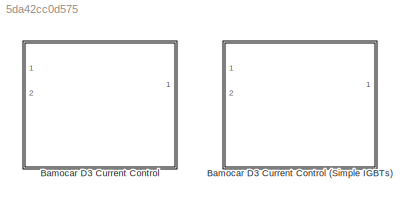
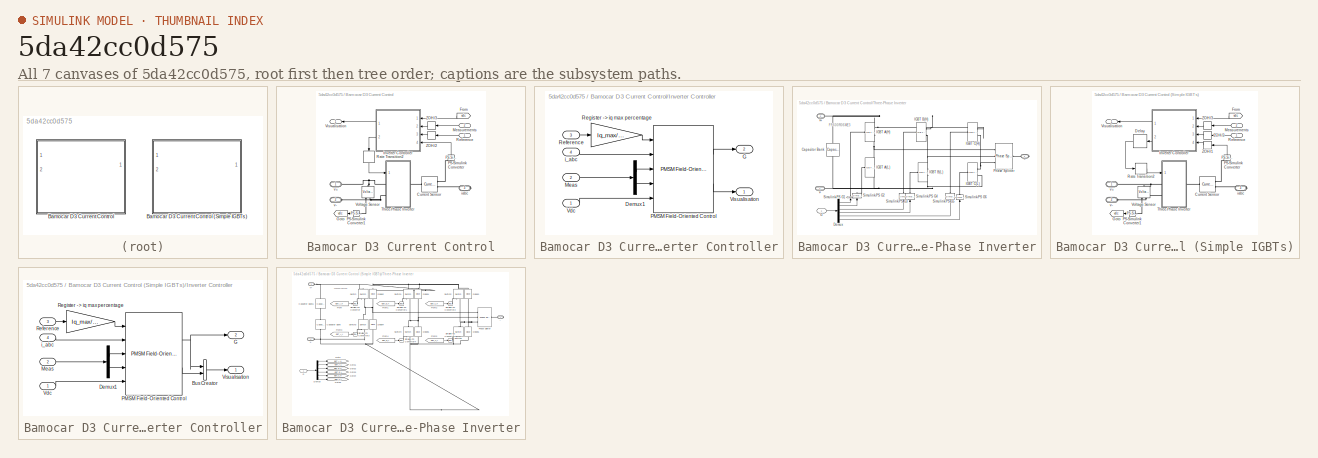
[diagram: thumbnail index - all 7 canvases of the model, root first then tree order]
MODEL slx_5da42cc0d575
KIND library
CONFIG AbsTol = auto
CONFIG EnableMultiTasking = off
CONFIG FixedStep = auto
CONFIG MaxStep = auto
CONFIG MinStep = auto
CONFIG RelTol = 1e-3
CONFIG SampleTimeConstraint = Unconstrained
CONFIG Solver = VariableStepAuto
CONFIG SolverName = VariableStepAuto
CONFIG StartTime = 0.0
CONFIG StopTime = 10.0
BLOCK [SubSystem] Bamocar D3 Current Control
  Ports = [2, 1, 0, 0, 0, 2, 1]
  RequestExecContextInheritance = off
BLOCK [SubSystem] Bamocar D3 Current Control (Simple IGBTs)
  Ports = [2, 1, 0, 0, 0, 2, 1]
  RequestExecContextInheritance = off
BLOCK [Reference] Bamocar D3 Current Control (Simple IGBTs)/Current Sensor  REF=ee_lib/Sensors &
Transducers/Current Sensor
(Three-Phase)
  Ports = [0, 0, 0, 0, 0, 1, 2]
  SourceBlock = ee_lib/Sensors &\nTransducers/Current Sensor\n(Three-Phase)
  SourceProductBaseCode = PS
  SourceProductName = Simscape Electrical
  SourceType = Current Sensor\n(Three-Phase)
BLOCK [Delay] Bamocar D3 Current Control (Simple IGBTs)/Delay
  DelayLength = 1
  InputPortMap = u0
  Ports = [1, 1]
BLOCK [From] Bamocar D3 Current Control (Simple IGBTs)/From
  GotoTag = vdc
BLOCK [Goto] Bamocar D3 Current Control (Simple IGBTs)/Goto
  GotoTag = vdc
BLOCK [SubSystem] Bamocar D3 Current Control (Simple IGBTs)/Inverter Controller
  Ports = [4, 2]
  RequestExecContextInheritance = off
BLOCK [BusCreator] Bamocar D3 Current Control (Simple IGBTs)/Inverter Controller/Bus Creator
  DisplayOption = bar
  InheritFromInputs = on
  Inputs = 2
  Ports = [2, 1]
BLOCK [Demux] Bamocar D3 Current Control (Simple IGBTs)/Inverter Controller/Demux1
  DisplayOption = bar
  Outputs = 2
  Ports = [1, 2]
BLOCK [Outport] Bamocar D3 Current Control (Simple IGBTs)/Inverter Controller/G
  IconDisplay = Port number
  Port = 2
BLOCK [Inport] Bamocar D3 Current Control (Simple IGBTs)/Inverter Controller/Meas
  IconDisplay = Port number
  Port = 2
BLOCK [Reference] Bamocar D3 Current Control (Simple IGBTs)/Inverter Controller/PMSM Field-Oriented Control  REF=eePmsmFieldOrientedControl/PMSM Field-Oriented
Control
  Ports = [5, 2]
  SourceBlock = eePmsmFieldOrientedControl/PMSM Field-Oriented\nControl
  SourceProductBaseCode = PS
  SourceProductName = Simscape Electrical
  SourceType = PMSM Field-Oriented Control
BLOCK [Inport] Bamocar D3 Current Control (Simple IGBTs)/Inverter Controller/Reference
  IconDisplay = Port number
  Port = 3
BLOCK [Gain] Bamocar D3 Current Control (Simple IGBTs)/Inverter Controller/Register -> iq max percentage
  Commented = through
  Gain = Iq_max/32787
  OutDataTypeStr = Inherit: Inherit via internal rule
  ParamDataTypeStr = Inherit: Inherit via internal rule
  SaturateOnIntegerOverflow = off
BLOCK [Inport] Bamocar D3 Current Control (Simple IGBTs)/Inverter Controller/Vdc
  IconDisplay = Port number
BLOCK [Outport] Bamocar D3 Current Control (Simple IGBTs)/Inverter Controller/Visualisation
  IconDisplay = Port number
BLOCK [Inport] Bamocar D3 Current Control (Simple IGBTs)/Inverter Controller/i_abc
  IconDisplay = Port number
  Port = 4
BLOCK [Inport] Bamocar D3 Current Control (Simple IGBTs)/Measurements
  IconDisplay = Port number
  Port = 2
BLOCK [Reference] Bamocar D3 Current Control (Simple IGBTs)/PS-Simulink Converter  REF=nesl_utility/PS-Simulink
Converter
  Ports = [0, 1, 0, 0, 0, 1]
  SourceBlock = nesl_utility/PS-Simulink\nConverter
  SourceProductBaseCode = SS
  SourceProductName = Simscape
  SourceType = PS-Simulink\nConverter
BLOCK [Reference] Bamocar D3 Current Control (Simple IGBTs)/PS-Simulink Converter1  REF=nesl_utility/PS-Simulink
Converter
  Ports = [0, 1, 0, 0, 0, 1]
  SourceBlock = nesl_utility/PS-Simulink\nConverter
  SourceProductBaseCode = SS
  SourceProductName = Simscape
  SourceType = PS-Simulink\nConverter
BLOCK [RateTransition] Bamocar D3 Current Control (Simple IGBTs)/Rate Transition2
  OutPortSampleTime = Ts
BLOCK [Inport] Bamocar D3 Current Control (Simple IGBTs)/Reference
  IconDisplay = Port number
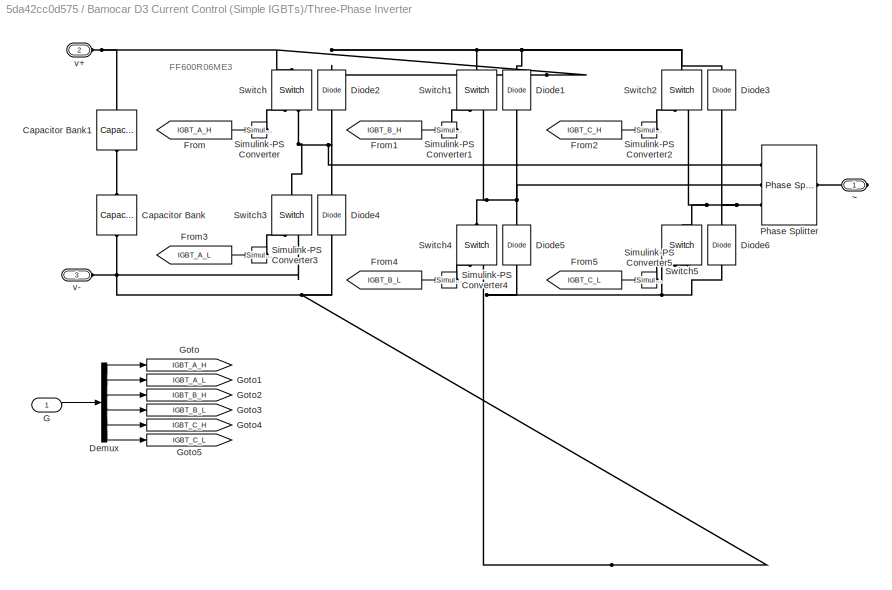
BLOCK [SubSystem] Bamocar D3 Current Control (Simple IGBTs)/Three-Phase Inverter
  Ports = [1, 0, 0, 0, 0, 2, 1]
  RequestExecContextInheritance = off
BLOCK [Reference] Bamocar D3 Current Control (Simple IGBTs)/Three-Phase Inverter/Capacitor Bank  REF=fl_lib/Electrical/Electrical Elements/Capacitor
  Ports = [0, 0, 0, 0, 0, 1, 1]
  SourceBlock = fl_lib/Electrical/Electrical Elements/Capacitor
  SourceProductBaseCode = SS
  SourceProductName = Simscape
  SourceType = Capacitor
BLOCK [Reference] Bamocar D3 Current Control (Simple IGBTs)/Three-Phase Inverter/Capacitor Bank1  REF=fl_lib/Electrical/Electrical Elements/Capacitor
  Ports = [0, 0, 0, 0, 0, 1, 1]
  SourceBlock = fl_lib/Electrical/Electrical Elements/Capacitor
  SourceProductBaseCode = SS
  SourceProductName = Simscape
  SourceType = Capacitor
BLOCK [Demux] Bamocar D3 Current Control (Simple IGBTs)/Three-Phase Inverter/Demux
  DisplayOption = bar
  Outputs = 6
  Ports = [1, 6]
BLOCK [Reference] Bamocar D3 Current Control (Simple IGBTs)/Three-Phase Inverter/Diode1  REF=fl_lib/Electrical/Electrical Elements/Diode
  Ports = [0, 0, 0, 0, 0, 1, 1]
  SourceBlock = fl_lib/Electrical/Electrical Elements/Diode
  SourceProductBaseCode = SS
  SourceProductName = Simscape
  SourceType = Diode
BLOCK [Reference] Bamocar D3 Current Control (Simple IGBTs)/Three-Phase Inverter/Diode2  REF=fl_lib/Electrical/Electrical Elements/Diode
  Ports = [0, 0, 0, 0, 0, 1, 1]
  SourceBlock = fl_lib/Electrical/Electrical Elements/Diode
  SourceProductBaseCode = SS
  SourceProductName = Simscape
  SourceType = Diode
BLOCK [Reference] Bamocar D3 Current Control (Simple IGBTs)/Three-Phase Inverter/Diode3  REF=fl_lib/Electrical/Electrical Elements/Diode
  Ports = [0, 0, 0, 0, 0, 1, 1]
  SourceBlock = fl_lib/Electrical/Electrical Elements/Diode
  SourceProductBaseCode = SS
  SourceProductName = Simscape
  SourceType = Diode
BLOCK [Reference] Bamocar D3 Current Control (Simple IGBTs)/Three-Phase Inverter/Diode4  REF=fl_lib/Electrical/Electrical Elements/Diode
  Ports = [0, 0, 0, 0, 0, 1, 1]
  SourceBlock = fl_lib/Electrical/Electrical Elements/Diode
  SourceProductBaseCode = SS
  SourceProductName = Simscape
  SourceType = Diode
BLOCK [Reference] Bamocar D3 Current Control (Simple IGBTs)/Three-Phase Inverter/Diode5  REF=fl_lib/Electrical/Electrical Elements/Diode
  Ports = [0, 0, 0, 0, 0, 1, 1]
  SourceBlock = fl_lib/Electrical/Electrical Elements/Diode
  SourceProductBaseCode = SS
  SourceProductName = Simscape
  SourceType = Diode
BLOCK [Reference] Bamocar D3 Current Control (Simple IGBTs)/Three-Phase Inverter/Diode6  REF=fl_lib/Electrical/Electrical Elements/Diode
  Ports = [0, 0, 0, 0, 0, 1, 1]
  SourceBlock = fl_lib/Electrical/Electrical Elements/Diode
  SourceProductBaseCode = SS
  SourceProductName = Simscape
  SourceType = Diode
BLOCK [From] Bamocar D3 Current Control (Simple IGBTs)/Three-Phase Inverter/From
  GotoTag = IGBT_A_H
BLOCK [From] Bamocar D3 Current Control (Simple IGBTs)/Three-Phase Inverter/From1
  GotoTag = IGBT_B_H
BLOCK [From] Bamocar D3 Current Control (Simple IGBTs)/Three-Phase Inverter/From2
  GotoTag = IGBT_C_H
BLOCK [From] Bamocar D3 Current Control (Simple IGBTs)/Three-Phase Inverter/From3
  GotoTag = IGBT_A_L
BLOCK [From] Bamocar D3 Current Control (Simple IGBTs)/Three-Phase Inverter/From4
  GotoTag = IGBT_B_L
BLOCK [From] Bamocar D3 Current Control (Simple IGBTs)/Three-Phase Inverter/From5
  GotoTag = IGBT_C_L
BLOCK [Inport] Bamocar D3 Current Control (Simple IGBTs)/Three-Phase Inverter/G
  IconDisplay = Port number
BLOCK [Goto] Bamocar D3 Current Control (Simple IGBTs)/Three-Phase Inverter/Goto
  GotoTag = IGBT_A_H
BLOCK [Goto] Bamocar D3 Current Control (Simple IGBTs)/Three-Phase Inverter/Goto1
  GotoTag = IGBT_A_L
BLOCK [Goto] Bamocar D3 Current Control (Simple IGBTs)/Three-Phase Inverter/Goto2
  GotoTag = IGBT_B_H
BLOCK [Goto] Bamocar D3 Current Control (Simple IGBTs)/Three-Phase Inverter/Goto3
  GotoTag = IGBT_B_L
BLOCK [Goto] Bamocar D3 Current Control (Simple IGBTs)/Three-Phase Inverter/Goto4
  GotoTag = IGBT_C_H
BLOCK [Goto] Bamocar D3 Current Control (Simple IGBTs)/Three-Phase Inverter/Goto5
  GotoTag = IGBT_C_L
BLOCK [Reference] Bamocar D3 Current Control (Simple IGBTs)/Three-Phase Inverter/Phase Splitter  REF=ee_lib/Connectors &
References/Phase Splitter
  Ports = [0, 0, 0, 0, 0, 1, 3]
  SourceBlock = ee_lib/Connectors &\nReferences/Phase Splitter
  SourceProductBaseCode = PS
  SourceProductName = Simscape Electrical
  SourceType = Phase Splitter
BLOCK [Reference] Bamocar D3 Current Control (Simple IGBTs)/Three-Phase Inverter/Simulink-PS Converter  REF=nesl_utility/Simulink-PS
Converter
  Ports = [1, 0, 0, 0, 0, 0, 1]
  SourceBlock = nesl_utility/Simulink-PS\nConverter
  SourceProductBaseCode = SS
  SourceProductName = Simscape
  SourceType = Simulink-PS\nConverter
BLOCK [Reference] Bamocar D3 Current Control (Simple IGBTs)/Three-Phase Inverter/Simulink-PS Converter1  REF=nesl_utility/Simulink-PS
Converter
  Ports = [1, 0, 0, 0, 0, 0, 1]
  SourceBlock = nesl_utility/Simulink-PS\nConverter
  SourceProductBaseCode = SS
  SourceProductName = Simscape
  SourceType = Simulink-PS\nConverter
BLOCK [Reference] Bamocar D3 Current Control (Simple IGBTs)/Three-Phase Inverter/Simulink-PS Converter2  REF=nesl_utility/Simulink-PS
Converter
  Ports = [1, 0, 0, 0, 0, 0, 1]
  SourceBlock = nesl_utility/Simulink-PS\nConverter
  SourceProductBaseCode = SS
  SourceProductName = Simscape
  SourceType = Simulink-PS\nConverter
BLOCK [Reference] Bamocar D3 Current Control (Simple IGBTs)/Three-Phase Inverter/Simulink-PS Converter3  REF=nesl_utility/Simulink-PS
Converter
  Ports = [1, 0, 0, 0, 0, 0, 1]
  SourceBlock = nesl_utility/Simulink-PS\nConverter
  SourceProductBaseCode = SS
  SourceProductName = Simscape
  SourceType = Simulink-PS\nConverter
BLOCK [Reference] Bamocar D3 Current Control (Simple IGBTs)/Three-Phase Inverter/Simulink-PS Converter4  REF=nesl_utility/Simulink-PS
Converter
  Ports = [1, 0, 0, 0, 0, 0, 1]
  SourceBlock = nesl_utility/Simulink-PS\nConverter
  SourceProductBaseCode = SS
  SourceProductName = Simscape
  SourceType = Simulink-PS\nConverter
BLOCK [Reference] Bamocar D3 Current Control (Simple IGBTs)/Three-Phase Inverter/Simulink-PS Converter5  REF=nesl_utility/Simulink-PS
Converter
  Ports = [1, 0, 0, 0, 0, 0, 1]
  SourceBlock = nesl_utility/Simulink-PS\nConverter
  SourceProductBaseCode = SS
  SourceProductName = Simscape
  SourceType = Simulink-PS\nConverter
BLOCK [Reference] Bamocar D3 Current Control (Simple IGBTs)/Three-Phase Inverter/Switch  REF=fl_lib/Electrical/Electrical Elements/Switch
  Ports = [0, 0, 0, 0, 0, 1, 2]
  SourceBlock = fl_lib/Electrical/Electrical Elements/Switch
  SourceProductBaseCode = SS
  SourceProductName = Simscape
  SourceType = Switch
BLOCK [Reference] Bamocar D3 Current Control (Simple IGBTs)/Three-Phase Inverter/Switch1  REF=fl_lib/Electrical/Electrical Elements/Switch
  Ports = [0, 0, 0, 0, 0, 1, 2]
  SourceBlock = fl_lib/Electrical/Electrical Elements/Switch
  SourceProductBaseCode = SS
  SourceProductName = Simscape
  SourceType = Switch
BLOCK [Reference] Bamocar D3 Current Control (Simple IGBTs)/Three-Phase Inverter/Switch2  REF=fl_lib/Electrical/Electrical Elements/Switch
  Ports = [0, 0, 0, 0, 0, 1, 2]
  SourceBlock = fl_lib/Electrical/Electrical Elements/Switch
  SourceProductBaseCode = SS
  SourceProductName = Simscape
  SourceType = Switch
BLOCK [Reference] Bamocar D3 Current Control (Simple IGBTs)/Three-Phase Inverter/Switch3  REF=fl_lib/Electrical/Electrical Elements/Switch
  Ports = [0, 0, 0, 0, 0, 1, 2]
  SourceBlock = fl_lib/Electrical/Electrical Elements/Switch
  SourceProductBaseCode = SS
  SourceProductName = Simscape
  SourceType = Switch
BLOCK [Reference] Bamocar D3 Current Control (Simple IGBTs)/Three-Phase Inverter/Switch4  REF=fl_lib/Electrical/Electrical Elements/Switch
  Ports = [0, 0, 0, 0, 0, 1, 2]
  SourceBlock = fl_lib/Electrical/Electrical Elements/Switch
  SourceProductBaseCode = SS
  SourceProductName = Simscape
  SourceType = Switch
BLOCK [Reference] Bamocar D3 Current Control (Simple IGBTs)/Three-Phase Inverter/Switch5  REF=fl_lib/Electrical/Electrical Elements/Switch
  Ports = [0, 0, 0, 0, 0, 1, 2]
  SourceBlock = fl_lib/Electrical/Electrical Elements/Switch
  SourceProductBaseCode = SS
  SourceProductName = Simscape
  SourceType = Switch
BLOCK [PMIOPort] Bamocar D3 Current Control (Simple IGBTs)/Three-Phase Inverter/v+
  Port = 2
  Side = Left
  Tag = PMCPort
BLOCK [PMIOPort] Bamocar D3 Current Control (Simple IGBTs)/Three-Phase Inverter/v-
  Port = 3
  Side = Left
  Tag = PMCPort
BLOCK [PMIOPort] Bamocar D3 Current Control (Simple IGBTs)/Three-Phase Inverter/~
  Side = Right
  Tag = PMCPort
BLOCK [Outport] Bamocar D3 Current Control (Simple IGBTs)/Visualisation
  IconDisplay = Port number
BLOCK [Reference] Bamocar D3 Current Control (Simple IGBTs)/Voltage Sensor  REF=fl_lib/Electrical/Electrical Sensors/Voltage Sensor
  Ports = [0, 0, 0, 0, 0, 1, 2]
  SourceBlock = fl_lib/Electrical/Electrical Sensors/Voltage Sensor
  SourceProductBaseCode = SS
  SourceProductName = Simscape
  SourceType = Voltage Sensor
BLOCK [ZeroOrderHold] Bamocar D3 Current Control (Simple IGBTs)/ZOH//1
  SampleTime = Tsc
BLOCK [ZeroOrderHold] Bamocar D3 Current Control (Simple IGBTs)/ZOH//2
  SampleTime = Tsc
BLOCK [ZeroOrderHold] Bamocar D3 Current Control (Simple IGBTs)/ZOH//3
  SampleTime = Tsc
BLOCK [PMIOPort] Bamocar D3 Current Control (Simple IGBTs)/iabc
  Port = 3
  Side = Right
BLOCK [PMIOPort] Bamocar D3 Current Control (Simple IGBTs)/v+
  Side = Left
BLOCK [PMIOPort] Bamocar D3 Current Control (Simple IGBTs)/v-
  Port = 2
  Side = Left
BLOCK [Reference] Bamocar D3 Current Control/Current Sensor  REF=ee_lib/Sensors &
Transducers/Current Sensor
(Three-Phase)
  Ports = [0, 0, 0, 0, 0, 1, 2]
  SourceBlock = ee_lib/Sensors &\nTransducers/Current Sensor\n(Three-Phase)
  SourceProductBaseCode = PS
  SourceProductName = Simscape Electrical
  SourceType = Current Sensor\n(Three-Phase)
BLOCK [From] Bamocar D3 Current Control/From
  GotoTag = vdc
BLOCK [Goto] Bamocar D3 Current Control/Goto
  GotoTag = vdc
BLOCK [SubSystem] Bamocar D3 Current Control/Inverter Controller
  Ports = [4, 2]
  RequestExecContextInheritance = off
BLOCK [Demux] Bamocar D3 Current Control/Inverter Controller/Demux1
  DisplayOption = bar
  Outputs = 2
  Ports = [1, 2]
BLOCK [Outport] Bamocar D3 Current Control/Inverter Controller/G
  IconDisplay = Port number
  Port = 2
BLOCK [Inport] Bamocar D3 Current Control/Inverter Controller/Meas
  IconDisplay = Port number
  Port = 2
BLOCK [Reference] Bamocar D3 Current Control/Inverter Controller/PMSM Field-Oriented Control  REF=eePmsmFieldOrientedControl/PMSM Field-Oriented
Control
  Ports = [5, 2]
  SourceBlock = eePmsmFieldOrientedControl/PMSM Field-Oriented\nControl
  SourceProductBaseCode = PS
  SourceProductName = Simscape Electrical
  SourceType = PMSM Field-Oriented Control
BLOCK [Inport] Bamocar D3 Current Control/Inverter Controller/Reference
  IconDisplay = Port number
  Port = 3
BLOCK [Gain] Bamocar D3 Current Control/Inverter Controller/Register -> iq max percentage
  Gain = Iq_max/32787
  OutDataTypeStr = Inherit: Inherit via internal rule
  ParamDataTypeStr = Inherit: Inherit via internal rule
  SaturateOnIntegerOverflow = off
BLOCK [Inport] Bamocar D3 Current Control/Inverter Controller/Vdc
  IconDisplay = Port number
BLOCK [Outport] Bamocar D3 Current Control/Inverter Controller/Visualisation
  IconDisplay = Port number
BLOCK [Inport] Bamocar D3 Current Control/Inverter Controller/i_abc
  IconDisplay = Port number
  Port = 4
BLOCK [Inport] Bamocar D3 Current Control/Measurements
  IconDisplay = Port number
  Port = 2
BLOCK [Reference] Bamocar D3 Current Control/PS-Simulink Converter  REF=nesl_utility/PS-Simulink
Converter
  Ports = [0, 1, 0, 0, 0, 1]
  SourceBlock = nesl_utility/PS-Simulink\nConverter
  SourceProductBaseCode = SS
  SourceProductName = Simscape
  SourceType = PS-Simulink\nConverter
BLOCK [Reference] Bamocar D3 Current Control/PS-Simulink Converter1  REF=nesl_utility/PS-Simulink
Converter
  Ports = [0, 1, 0, 0, 0, 1]
  SourceBlock = nesl_utility/PS-Simulink\nConverter
  SourceProductBaseCode = SS
  SourceProductName = Simscape
  SourceType = PS-Simulink\nConverter
BLOCK [RateTransition] Bamocar D3 Current Control/Rate Transition2
  OutPortSampleTime = Ts
BLOCK [Inport] Bamocar D3 Current Control/Reference
  IconDisplay = Port number
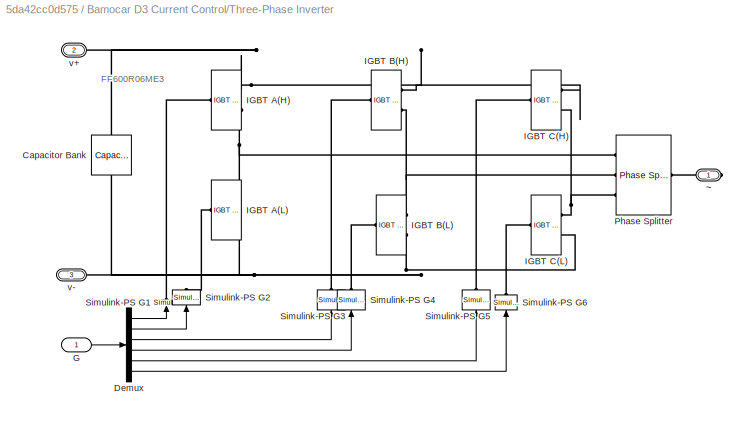
BLOCK [SubSystem] Bamocar D3 Current Control/Three-Phase Inverter
  Ports = [1, 0, 0, 0, 0, 2, 1]
  RequestExecContextInheritance = off
BLOCK [Reference] Bamocar D3 Current Control/Three-Phase Inverter/Capacitor Bank  REF=fl_lib/Electrical/Electrical Elements/Capacitor
  Ports = [0, 0, 0, 0, 0, 1, 1]
  SourceBlock = fl_lib/Electrical/Electrical Elements/Capacitor
  SourceProductBaseCode = SS
  SourceProductName = Simscape
  SourceType = Capacitor
BLOCK [Demux] Bamocar D3 Current Control/Three-Phase Inverter/Demux
  DisplayOption = bar
  Outputs = 6
  Ports = [1, 6]
BLOCK [Inport] Bamocar D3 Current Control/Three-Phase Inverter/G
  IconDisplay = Port number
BLOCK [Reference] Bamocar D3 Current Control/Three-Phase Inverter/IGBT A(H)  REF=ee_lib/Semiconductors &
Converters/IGBT
(Ideal,
Switching)
  Description = Bamocar D3 IGBT Model Number: FF600R06ME3
  Ports = [0, 0, 0, 0, 0, 1, 2]
  SourceBlock = ee_lib/Semiconductors &\nConverters/IGBT\n(Ideal,\nSwitching)
  SourceProductBaseCode = PS
  SourceProductName = Simscape Electrical
  SourceType = IGBT\n(Ideal,\nSwitching)
BLOCK [Reference] Bamocar D3 Current Control/Three-Phase Inverter/IGBT A(L)  REF=ee_lib/Semiconductors &
Converters/IGBT
(Ideal,
Switching)
  Description = Bamocar D3 IGBT Model Number: FF600R06ME3
  Ports = [0, 0, 0, 0, 0, 1, 2]
  SourceBlock = ee_lib/Semiconductors &\nConverters/IGBT\n(Ideal,\nSwitching)
  SourceProductBaseCode = PS
  SourceProductName = Simscape Electrical
  SourceType = IGBT\n(Ideal,\nSwitching)
BLOCK [Reference] Bamocar D3 Current Control/Three-Phase Inverter/IGBT B(H)  REF=ee_lib/Semiconductors &
Converters/IGBT
(Ideal,
Switching)
  Description = Bamocar D3 IGBT Model Number: FF600R06ME3
  Ports = [0, 0, 0, 0, 0, 1, 2]
  SourceBlock = ee_lib/Semiconductors &\nConverters/IGBT\n(Ideal,\nSwitching)
  SourceProductBaseCode = PS
  SourceProductName = Simscape Electrical
  SourceType = IGBT\n(Ideal,\nSwitching)
BLOCK [Reference] Bamocar D3 Current Control/Three-Phase Inverter/IGBT B(L)  REF=ee_lib/Semiconductors &
Converters/IGBT
(Ideal,
Switching)
  Description = Bamocar D3 IGBT Model Number: FF600R06ME3
  Ports = [0, 0, 0, 0, 0, 1, 2]
  SourceBlock = ee_lib/Semiconductors &\nConverters/IGBT\n(Ideal,\nSwitching)
  SourceProductBaseCode = PS
  SourceProductName = Simscape Electrical
  SourceType = IGBT\n(Ideal,\nSwitching)
BLOCK [Reference] Bamocar D3 Current Control/Three-Phase Inverter/IGBT C(H)  REF=ee_lib/Semiconductors &
Converters/IGBT
(Ideal,
Switching)
  Description = Bamocar D3 IGBT Model Number: FF600R06ME3
  Ports = [0, 0, 0, 0, 0, 1, 2]
  SourceBlock = ee_lib/Semiconductors &\nConverters/IGBT\n(Ideal,\nSwitching)
  SourceProductBaseCode = PS
  SourceProductName = Simscape Electrical
  SourceType = IGBT\n(Ideal,\nSwitching)
BLOCK [Reference] Bamocar D3 Current Control/Three-Phase Inverter/IGBT C(L)  REF=ee_lib/Semiconductors &
Converters/IGBT
(Ideal,
Switching)
  Description = Bamocar D3 IGBT Model Number: FF600R06ME3
  Ports = [0, 0, 0, 0, 0, 1, 2]
  SourceBlock = ee_lib/Semiconductors &\nConverters/IGBT\n(Ideal,\nSwitching)
  SourceProductBaseCode = PS
  SourceProductName = Simscape Electrical
  SourceType = IGBT\n(Ideal,\nSwitching)
BLOCK [Reference] Bamocar D3 Current Control/Three-Phase Inverter/Phase Splitter  REF=ee_lib/Connectors &
References/Phase Splitter
  Ports = [0, 0, 0, 0, 0, 1, 3]
  SourceBlock = ee_lib/Connectors &\nReferences/Phase Splitter
  SourceProductBaseCode = PS
  SourceProductName = Simscape Electrical
  SourceType = Phase Splitter
BLOCK [Reference] Bamocar D3 Current Control/Three-Phase Inverter/Simulink-PS G1  REF=nesl_utility/Simulink-PS
Converter
  Ports = [1, 0, 0, 0, 0, 0, 1]
  SourceBlock = nesl_utility/Simulink-PS\nConverter
  SourceProductBaseCode = SS
  SourceProductName = Simscape
  SourceType = Simulink-PS\nConverter
BLOCK [Reference] Bamocar D3 Current Control/Three-Phase Inverter/Simulink-PS G2  REF=nesl_utility/Simulink-PS
Converter
  Ports = [1, 0, 0, 0, 0, 0, 1]
  SourceBlock = nesl_utility/Simulink-PS\nConverter
  SourceProductBaseCode = SS
  SourceProductName = Simscape
  SourceType = Simulink-PS\nConverter
BLOCK [Reference] Bamocar D3 Current Control/Three-Phase Inverter/Simulink-PS G3  REF=nesl_utility/Simulink-PS
Converter
  Ports = [1, 0, 0, 0, 0, 0, 1]
  SourceBlock = nesl_utility/Simulink-PS\nConverter
  SourceProductBaseCode = SS
  SourceProductName = Simscape
  SourceType = Simulink-PS\nConverter
BLOCK [Reference] Bamocar D3 Current Control/Three-Phase Inverter/Simulink-PS G4  REF=nesl_utility/Simulink-PS
Converter
  Ports = [1, 0, 0, 0, 0, 0, 1]
  SourceBlock = nesl_utility/Simulink-PS\nConverter
  SourceProductBaseCode = SS
  SourceProductName = Simscape
  SourceType = Simulink-PS\nConverter
BLOCK [Reference] Bamocar D3 Current Control/Three-Phase Inverter/Simulink-PS G5  REF=nesl_utility/Simulink-PS
Converter
  Ports = [1, 0, 0, 0, 0, 0, 1]
  SourceBlock = nesl_utility/Simulink-PS\nConverter
  SourceProductBaseCode = SS
  SourceProductName = Simscape
  SourceType = Simulink-PS\nConverter
BLOCK [Reference] Bamocar D3 Current Control/Three-Phase Inverter/Simulink-PS G6  REF=nesl_utility/Simulink-PS
Converter
  Ports = [1, 0, 0, 0, 0, 0, 1]
  SourceBlock = nesl_utility/Simulink-PS\nConverter
  SourceProductBaseCode = SS
  SourceProductName = Simscape
  SourceType = Simulink-PS\nConverter
BLOCK [PMIOPort] Bamocar D3 Current Control/Three-Phase Inverter/v+
  Port = 2
  Side = Left
  Tag = PMCPort
BLOCK [PMIOPort] Bamocar D3 Current Control/Three-Phase Inverter/v-
  Port = 3
  Side = Left
  Tag = PMCPort
BLOCK [PMIOPort] Bamocar D3 Current Control/Three-Phase Inverter/~
  Side = Right
  Tag = PMCPort
BLOCK [Outport] Bamocar D3 Current Control/Visualisation
  IconDisplay = Port number
BLOCK [Reference] Bamocar D3 Current Control/Voltage Sensor  REF=fl_lib/Electrical/Electrical Sensors/Voltage Sensor
  Ports = [0, 0, 0, 0, 0, 1, 2]
  SourceBlock = fl_lib/Electrical/Electrical Sensors/Voltage Sensor
  SourceProductBaseCode = SS
  SourceProductName = Simscape
  SourceType = Voltage Sensor
BLOCK [ZeroOrderHold] Bamocar D3 Current Control/ZOH//2
  SampleTime = Tsc
BLOCK [ZeroOrderHold] Bamocar D3 Current Control/ZOH//3
  SampleTime = Tsc
BLOCK [PMIOPort] Bamocar D3 Current Control/iabc
  Port = 3
  Side = Right
BLOCK [PMIOPort] Bamocar D3 Current Control/v+
  Side = Left
BLOCK [PMIOPort] Bamocar D3 Current Control/v-
  Port = 2
  Side = Left
ANNOTATION Bamocar D3 Current Control (Simple IGBTs)/Three-Phase Inverter: FF600R06ME3
ANNOTATION Bamocar D3 Current Control/Three-Phase Inverter: FF600R06ME3
LINE Bamocar D3 Current Control (Simple IGBTs)/Delay:1 -> Bamocar D3 Current Control (Simple IGBTs)/Rate Transition2:1
LINE Bamocar D3 Current Control (Simple IGBTs)/From:1 -> Bamocar D3 Current Control (Simple IGBTs)/Inverter Controller:1
LINE Bamocar D3 Current Control (Simple IGBTs)/Inverter Controller/Bus Creator:1 -> Bamocar D3 Current Control (Simple IGBTs)/Inverter Controller/Visualisation:1
LINE Bamocar D3 Current Control (Simple IGBTs)/Inverter Controller/Demux1:1 -> Bamocar D3 Current Control (Simple IGBTs)/Inverter Controller/PMSM Field-Oriented Control:3
LINE Bamocar D3 Current Control (Simple IGBTs)/Inverter Controller/Demux1:2 -> Bamocar D3 Current Control (Simple IGBTs)/Inverter Controller/PMSM Field-Oriented Control:4
LINE Bamocar D3 Current Control (Simple IGBTs)/Inverter Controller/Meas:1 -> Bamocar D3 Current Control (Simple IGBTs)/Inverter Controller/Demux1:1
NET Bamocar D3 Current Control (Simple IGBTs)/Inverter Controller/PMSM Field-Oriented Control:1 -> Bamocar D3 Current Control (Simple IGBTs)/Inverter Controller/Bus Creator:1, Bamocar D3 Current Control (Simple IGBTs)/Inverter Controller/G:1
LINE Bamocar D3 Current Control (Simple IGBTs)/Inverter Controller/PMSM Field-Oriented Control:2 -> Bamocar D3 Current Control (Simple IGBTs)/Inverter Controller/Bus Creator:2
LINE Bamocar D3 Current Control (Simple IGBTs)/Inverter Controller/Reference:1 -> Bamocar D3 Current Control (Simple IGBTs)/Inverter Controller/Register -> iq max percentage:1
LINE Bamocar D3 Current Control (Simple IGBTs)/Inverter Controller/Register -> iq max percentage:1 -> Bamocar D3 Current Control (Simple IGBTs)/Inverter Controller/PMSM Field-Oriented Control:1
LINE Bamocar D3 Current Control (Simple IGBTs)/Inverter Controller/Vdc:1 -> Bamocar D3 Current Control (Simple IGBTs)/Inverter Controller/PMSM Field-Oriented Control:5
LINE Bamocar D3 Current Control (Simple IGBTs)/Inverter Controller/i_abc:1 -> Bamocar D3 Current Control (Simple IGBTs)/Inverter Controller/PMSM Field-Oriented Control:2
LINE Bamocar D3 Current Control (Simple IGBTs)/Inverter Controller:1 -> Bamocar D3 Current Control (Simple IGBTs)/Visualisation:1
LINE Bamocar D3 Current Control (Simple IGBTs)/Inverter Controller:2 -> Bamocar D3 Current Control (Simple IGBTs)/Delay:1
LINE Bamocar D3 Current Control (Simple IGBTs)/Measurements:1 -> Bamocar D3 Current Control (Simple IGBTs)/ZOH//3:1
LINE Bamocar D3 Current Control (Simple IGBTs)/PS-Simulink Converter1:1 -> Bamocar D3 Current Control (Simple IGBTs)/Goto:1
LINE Bamocar D3 Current Control (Simple IGBTs)/PS-Simulink Converter:1 -> Bamocar D3 Current Control (Simple IGBTs)/ZOH//1:1
LINE Bamocar D3 Current Control (Simple IGBTs)/Rate Transition2:1 -> Bamocar D3 Current Control (Simple IGBTs)/Three-Phase Inverter:1
LINE Bamocar D3 Current Control (Simple IGBTs)/Reference:1 -> Bamocar D3 Current Control (Simple IGBTs)/ZOH//2:1
LINE Bamocar D3 Current Control (Simple IGBTs)/Three-Phase Inverter/Demux:1 -> Bamocar D3 Current Control (Simple IGBTs)/Three-Phase Inverter/Goto:1
LINE Bamocar D3 Current Control (Simple IGBTs)/Three-Phase Inverter/Demux:2 -> Bamocar D3 Current Control (Simple IGBTs)/Three-Phase Inverter/Goto1:1
LINE Bamocar D3 Current Control (Simple IGBTs)/Three-Phase Inverter/Demux:3 -> Bamocar D3 Current Control (Simple IGBTs)/Three-Phase Inverter/Goto2:1
LINE Bamocar D3 Current Control (Simple IGBTs)/Three-Phase Inverter/Demux:4 -> Bamocar D3 Current Control (Simple IGBTs)/Three-Phase Inverter/Goto3:1
LINE Bamocar D3 Current Control (Simple IGBTs)/Three-Phase Inverter/Demux:5 -> Bamocar D3 Current Control (Simple IGBTs)/Three-Phase Inverter/Goto4:1
LINE Bamocar D3 Current Control (Simple IGBTs)/Three-Phase Inverter/Demux:6 -> Bamocar D3 Current Control (Simple IGBTs)/Three-Phase Inverter/Goto5:1
LINE Bamocar D3 Current Control (Simple IGBTs)/Three-Phase Inverter/From1:1 -> Bamocar D3 Current Control (Simple IGBTs)/Three-Phase Inverter/Simulink-PS Converter1:1
LINE Bamocar D3 Current Control (Simple IGBTs)/Three-Phase Inverter/From2:1 -> Bamocar D3 Current Control (Simple IGBTs)/Three-Phase Inverter/Simulink-PS Converter2:1
LINE Bamocar D3 Current Control (Simple IGBTs)/Three-Phase Inverter/From3:1 -> Bamocar D3 Current Control (Simple IGBTs)/Three-Phase Inverter/Simulink-PS Converter3:1
LINE Bamocar D3 Current Control (Simple IGBTs)/Three-Phase Inverter/From4:1 -> Bamocar D3 Current Control (Simple IGBTs)/Three-Phase Inverter/Simulink-PS Converter4:1
LINE Bamocar D3 Current Control (Simple IGBTs)/Three-Phase Inverter/From5:1 -> Bamocar D3 Current Control (Simple IGBTs)/Three-Phase Inverter/Simulink-PS Converter5:1
LINE Bamocar D3 Current Control (Simple IGBTs)/Three-Phase Inverter/From:1 -> Bamocar D3 Current Control (Simple IGBTs)/Three-Phase Inverter/Simulink-PS Converter:1
LINE Bamocar D3 Current Control (Simple IGBTs)/Three-Phase Inverter/G:1 -> Bamocar D3 Current Control (Simple IGBTs)/Three-Phase Inverter/Demux:1
LINE Bamocar D3 Current Control (Simple IGBTs)/ZOH//1:1 -> Bamocar D3 Current Control (Simple IGBTs)/Inverter Controller:4
LINE Bamocar D3 Current Control (Simple IGBTs)/ZOH//2:1 -> Bamocar D3 Current Control (Simple IGBTs)/Inverter Controller:3
LINE Bamocar D3 Current Control (Simple IGBTs)/ZOH//3:1 -> Bamocar D3 Current Control (Simple IGBTs)/Inverter Controller:2
LINE Bamocar D3 Current Control/From:1 -> Bamocar D3 Current Control/Inverter Controller:1
LINE Bamocar D3 Current Control/Inverter Controller/Demux1:1 -> Bamocar D3 Current Control/Inverter Controller/PMSM Field-Oriented Control:3
LINE Bamocar D3 Current Control/Inverter Controller/Demux1:2 -> Bamocar D3 Current Control/Inverter Controller/PMSM Field-Oriented Control:4
LINE Bamocar D3 Current Control/Inverter Controller/Meas:1 -> Bamocar D3 Current Control/Inverter Controller/Demux1:1
LINE Bamocar D3 Current Control/Inverter Controller/PMSM Field-Oriented Control:1 -> Bamocar D3 Current Control/Inverter Controller/G:1
LINE Bamocar D3 Current Control/Inverter Controller/PMSM Field-Oriented Control:2 -> Bamocar D3 Current Control/Inverter Controller/Visualisation:1
LINE Bamocar D3 Current Control/Inverter Controller/Reference:1 -> Bamocar D3 Current Control/Inverter Controller/Register -> iq max percentage:1
LINE Bamocar D3 Current Control/Inverter Controller/Register -> iq max percentage:1 -> Bamocar D3 Current Control/Inverter Controller/PMSM Field-Oriented Control:1
LINE Bamocar D3 Current Control/Inverter Controller/Vdc:1 -> Bamocar D3 Current Control/Inverter Controller/PMSM Field-Oriented Control:5
LINE Bamocar D3 Current Control/Inverter Controller/i_abc:1 -> Bamocar D3 Current Control/Inverter Controller/PMSM Field-Oriented Control:2
LINE Bamocar D3 Current Control/Inverter Controller:1 -> Bamocar D3 Current Control/Visualisation:1
LINE Bamocar D3 Current Control/Inverter Controller:2 -> Bamocar D3 Current Control/Rate Transition2:1
LINE Bamocar D3 Current Control/Measurements:1 -> Bamocar D3 Current Control/ZOH//3:1
LINE Bamocar D3 Current Control/PS-Simulink Converter1:1 -> Bamocar D3 Current Control/Goto:1
LINE Bamocar D3 Current Control/PS-Simulink Converter:1 -> Bamocar D3 Current Control/Inverter Controller:4
LINE Bamocar D3 Current Control/Rate Transition2:1 -> Bamocar D3 Current Control/Three-Phase Inverter:1
LINE Bamocar D3 Current Control/Reference:1 -> Bamocar D3 Current Control/ZOH//2:1
LINE Bamocar D3 Current Control/Three-Phase Inverter/Demux:1 -> Bamocar D3 Current Control/Three-Phase Inverter/Simulink-PS G1:1
LINE Bamocar D3 Current Control/Three-Phase Inverter/Demux:2 -> Bamocar D3 Current Control/Three-Phase Inverter/Simulink-PS G2:1
LINE Bamocar D3 Current Control/Three-Phase Inverter/Demux:3 -> Bamocar D3 Current Control/Three-Phase Inverter/Simulink-PS G3:1
LINE Bamocar D3 Current Control/Three-Phase Inverter/Demux:4 -> Bamocar D3 Current Control/Three-Phase Inverter/Simulink-PS G4:1
LINE Bamocar D3 Current Control/Three-Phase Inverter/Demux:5 -> Bamocar D3 Current Control/Three-Phase Inverter/Simulink-PS G5:1
LINE Bamocar D3 Current Control/Three-Phase Inverter/Demux:6 -> Bamocar D3 Current Control/Three-Phase Inverter/Simulink-PS G6:1
LINE Bamocar D3 Current Control/Three-Phase Inverter/G:1 -> Bamocar D3 Current Control/Three-Phase Inverter/Demux:1
LINE Bamocar D3 Current Control/ZOH//2:1 -> Bamocar D3 Current Control/Inverter Controller:3
LINE Bamocar D3 Current Control/ZOH//3:1 -> Bamocar D3 Current Control/Inverter Controller:2
PLINE Bamocar D3 Current Control (Simple IGBTs)/Current Sensor:LConn1 -- Bamocar D3 Current Control (Simple IGBTs)/Three-Phase Inverter:RConn1
PLINE Bamocar D3 Current Control (Simple IGBTs)/Current Sensor:RConn1 -- Bamocar D3 Current Control (Simple IGBTs)/PS-Simulink Converter:LConn1
PLINE Bamocar D3 Current Control (Simple IGBTs)/Current Sensor:RConn2 -- Bamocar D3 Current Control (Simple IGBTs)/iabc:RConn1
PLINE Bamocar D3 Current Control (Simple IGBTs)/PS-Simulink Converter1:LConn1 -- Bamocar D3 Current Control (Simple IGBTs)/Voltage Sensor:RConn1
PNET net1: Bamocar D3 Current Control (Simple IGBTs)/Three-Phase Inverter/Capacitor Bank1:LConn1 -- Bamocar D3 Current Control (Simple IGBTs)/Three-Phase Inverter/Diode1:RConn1 -- Bamocar D3 Current Control (Simple IGBTs)/Three-Phase Inverter/Diode2:RConn1 -- Bamocar D3 Current Control (Simple IGBTs)/Three-Phase Inverter/Diode3:RConn1 -- Bamocar D3 Current Control (Simple IGBTs)/Three-Phase Inverter/Switch1:LConn1 -- Bamocar D3 Current Control (Simple IGBTs)/Three-Phase Inverter/Switch2:LConn1 -- Bamocar D3 Current Control (Simple IGBTs)/Three-Phase Inverter/Switch:LConn1 -- Bamocar D3 Current Control (Simple IGBTs)/Three-Phase Inverter/v+:RConn1
PLINE Bamocar D3 Current Control (Simple IGBTs)/Three-Phase Inverter/Capacitor Bank1:RConn1 -- Bamocar D3 Current Control (Simple IGBTs)/Three-Phase Inverter/Capacitor Bank:LConn1
PNET net2: Bamocar D3 Current Control (Simple IGBTs)/Three-Phase Inverter/Capacitor Bank:RConn1 -- Bamocar D3 Current Control (Simple IGBTs)/Three-Phase Inverter/Diode4:LConn1 -- Bamocar D3 Current Control (Simple IGBTs)/Three-Phase Inverter/Diode5:LConn1 -- Bamocar D3 Current Control (Simple IGBTs)/Three-Phase Inverter/Diode6:LConn1 -- Bamocar D3 Current Control (Simple IGBTs)/Three-Phase Inverter/Switch3:RConn2 -- Bamocar D3 Current Control (Simple IGBTs)/Three-Phase Inverter/Switch4:RConn2 -- Bamocar D3 Current Control (Simple IGBTs)/Three-Phase Inverter/Switch5:RConn2 -- Bamocar D3 Current Control (Simple IGBTs)/Three-Phase Inverter/v-:RConn1
PNET net3: Bamocar D3 Current Control (Simple IGBTs)/Three-Phase Inverter/Diode1:LConn1 -- Bamocar D3 Current Control (Simple IGBTs)/Three-Phase Inverter/Diode5:RConn1 -- Bamocar D3 Current Control (Simple IGBTs)/Three-Phase Inverter/Phase Splitter:RConn2 -- Bamocar D3 Current Control (Simple IGBTs)/Three-Phase Inverter/Switch1:RConn2 -- Bamocar D3 Current Control (Simple IGBTs)/Three-Phase Inverter/Switch4:LConn1
PNET net4: Bamocar D3 Current Control (Simple IGBTs)/Three-Phase Inverter/Diode2:LConn1 -- Bamocar D3 Current Control (Simple IGBTs)/Three-Phase Inverter/Diode4:RConn1 -- Bamocar D3 Current Control (Simple IGBTs)/Three-Phase Inverter/Phase Splitter:RConn1 -- Bamocar D3 Current Control (Simple IGBTs)/Three-Phase Inverter/Switch3:LConn1 -- Bamocar D3 Current Control (Simple IGBTs)/Three-Phase Inverter/Switch:RConn2
PNET net5: Bamocar D3 Current Control (Simple IGBTs)/Three-Phase Inverter/Diode3:LConn1 -- Bamocar D3 Current Control (Simple IGBTs)/Three-Phase Inverter/Diode6:RConn1 -- Bamocar D3 Current Control (Simple IGBTs)/Three-Phase Inverter/Phase Splitter:RConn3 -- Bamocar D3 Current Control (Simple IGBTs)/Three-Phase Inverter/Switch2:RConn2 -- Bamocar D3 Current Control (Simple IGBTs)/Three-Phase Inverter/Switch5:LConn1
PLINE Bamocar D3 Current Control (Simple IGBTs)/Three-Phase Inverter/Phase Splitter:LConn1 -- Bamocar D3 Current Control (Simple IGBTs)/Three-Phase Inverter/~:RConn1
PLINE Bamocar D3 Current Control (Simple IGBTs)/Three-Phase Inverter/Simulink-PS Converter1:RConn1 -- Bamocar D3 Current Control (Simple IGBTs)/Three-Phase Inverter/Switch1:RConn1
PLINE Bamocar D3 Current Control (Simple IGBTs)/Three-Phase Inverter/Simulink-PS Converter2:RConn1 -- Bamocar D3 Current Control (Simple IGBTs)/Three-Phase Inverter/Switch2:RConn1
PLINE Bamocar D3 Current Control (Simple IGBTs)/Three-Phase Inverter/Simulink-PS Converter3:RConn1 -- Bamocar D3 Current Control (Simple IGBTs)/Three-Phase Inverter/Switch3:RConn1
PLINE Bamocar D3 Current Control (Simple IGBTs)/Three-Phase Inverter/Simulink-PS Converter4:RConn1 -- Bamocar D3 Current Control (Simple IGBTs)/Three-Phase Inverter/Switch4:RConn1
PLINE Bamocar D3 Current Control (Simple IGBTs)/Three-Phase Inverter/Simulink-PS Converter5:RConn1 -- Bamocar D3 Current Control (Simple IGBTs)/Three-Phase Inverter/Switch5:RConn1
PLINE Bamocar D3 Current Control (Simple IGBTs)/Three-Phase Inverter/Simulink-PS Converter:RConn1 -- Bamocar D3 Current Control (Simple IGBTs)/Three-Phase Inverter/Switch:RConn1
PNET net6: Bamocar D3 Current Control (Simple IGBTs)/Three-Phase Inverter:LConn1 -- Bamocar D3 Current Control (Simple IGBTs)/Voltage Sensor:LConn1 -- Bamocar D3 Current Control (Simple IGBTs)/v+:RConn1
PNET net7: Bamocar D3 Current Control (Simple IGBTs)/Three-Phase Inverter:LConn2 -- Bamocar D3 Current Control (Simple IGBTs)/Voltage Sensor:RConn2 -- Bamocar D3 Current Control (Simple IGBTs)/v-:RConn1
PLINE Bamocar D3 Current Control/Current Sensor:LConn1 -- Bamocar D3 Current Control/Three-Phase Inverter:RConn1
PLINE Bamocar D3 Current Control/Current Sensor:RConn1 -- Bamocar D3 Current Control/PS-Simulink Converter:LConn1
PLINE Bamocar D3 Current Control/Current Sensor:RConn2 -- Bamocar D3 Current Control/iabc:RConn1
PLINE Bamocar D3 Current Control/PS-Simulink Converter1:LConn1 -- Bamocar D3 Current Control/Voltage Sensor:RConn1
PNET net8: Bamocar D3 Current Control/Three-Phase Inverter/Capacitor Bank:LConn1 -- Bamocar D3 Current Control/Three-Phase Inverter/IGBT A(H):RConn1 -- Bamocar D3 Current Control/Three-Phase Inverter/IGBT B(H):RConn1 -- Bamocar D3 Current Control/Three-Phase Inverter/IGBT C(H):RConn1 -- Bamocar D3 Current Control/Three-Phase Inverter/v+:RConn1
PNET net9: Bamocar D3 Current Control/Three-Phase Inverter/Capacitor Bank:RConn1 -- Bamocar D3 Current Control/Three-Phase Inverter/IGBT A(L):RConn2 -- Bamocar D3 Current Control/Three-Phase Inverter/IGBT B(L):RConn2 -- Bamocar D3 Current Control/Three-Phase Inverter/IGBT C(L):RConn2 -- Bamocar D3 Current Control/Three-Phase Inverter/v-:RConn1
PLINE Bamocar D3 Current Control/Three-Phase Inverter/IGBT A(H):LConn1 -- Bamocar D3 Current Control/Three-Phase Inverter/Simulink-PS G1:RConn1
PNET net10: Bamocar D3 Current Control/Three-Phase Inverter/IGBT A(H):RConn2 -- Bamocar D3 Current Control/Three-Phase Inverter/IGBT A(L):RConn1 -- Bamocar D3 Current Control/Three-Phase Inverter/Phase Splitter:RConn1
PLINE Bamocar D3 Current Control/Three-Phase Inverter/IGBT A(L):LConn1 -- Bamocar D3 Current Control/Three-Phase Inverter/Simulink-PS G2:RConn1
PLINE Bamocar D3 Current Control/Three-Phase Inverter/IGBT B(H):LConn1 -- Bamocar D3 Current Control/Three-Phase Inverter/Simulink-PS G3:RConn1
PNET net11: Bamocar D3 Current Control/Three-Phase Inverter/IGBT B(H):RConn2 -- Bamocar D3 Current Control/Three-Phase Inverter/IGBT B(L):RConn1 -- Bamocar D3 Current Control/Three-Phase Inverter/Phase Splitter:RConn2
PLINE Bamocar D3 Current Control/Three-Phase Inverter/IGBT B(L):LConn1 -- Bamocar D3 Current Control/Three-Phase Inverter/Simulink-PS G4:RConn1
PLINE Bamocar D3 Current Control/Three-Phase Inverter/IGBT C(H):LConn1 -- Bamocar D3 Current Control/Three-Phase Inverter/Simulink-PS G5:RConn1
PNET net12: Bamocar D3 Current Control/Three-Phase Inverter/IGBT C(H):RConn2 -- Bamocar D3 Current Control/Three-Phase Inverter/IGBT C(L):RConn1 -- Bamocar D3 Current Control/Three-Phase Inverter/Phase Splitter:RConn3
PLINE Bamocar D3 Current Control/Three-Phase Inverter/IGBT C(L):LConn1 -- Bamocar D3 Current Control/Three-Phase Inverter/Simulink-PS G6:RConn1
PLINE Bamocar D3 Current Control/Three-Phase Inverter/Phase Splitter:LConn1 -- Bamocar D3 Current Control/Three-Phase Inverter/~:RConn1
PNET net13: Bamocar D3 Current Control/Three-Phase Inverter:LConn1 -- Bamocar D3 Current Control/Voltage Sensor:LConn1 -- Bamocar D3 Current Control/v+:RConn1
PNET net14: Bamocar D3 Current Control/Three-Phase Inverter:LConn2 -- Bamocar D3 Current Control/Voltage Sensor:RConn2 -- Bamocar D3 Current Control/v-:RConn1
note: NET lines group one-source signal fan-out (src -> all destinations, sorted); 1:1 wires keep LINE; PNET lines group multi-terminal physical nets as a canonical sorted terminal list (undirected conserving connections); 2-terminal nets keep the pairwise PLINE form
